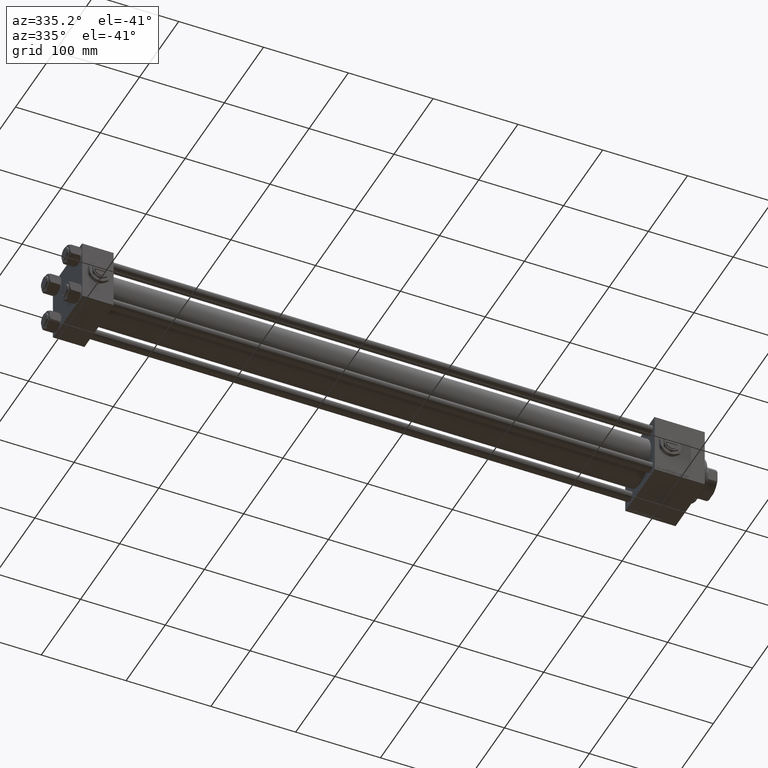
[diagram: clean part render]
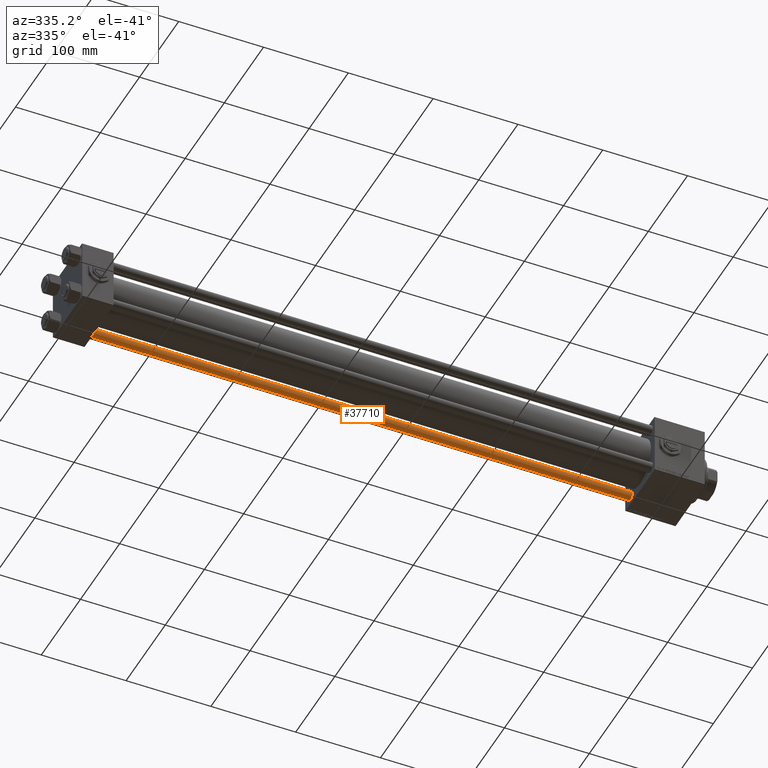
[diagram: same view with one face highlighted and labeled with its STEP entity id]
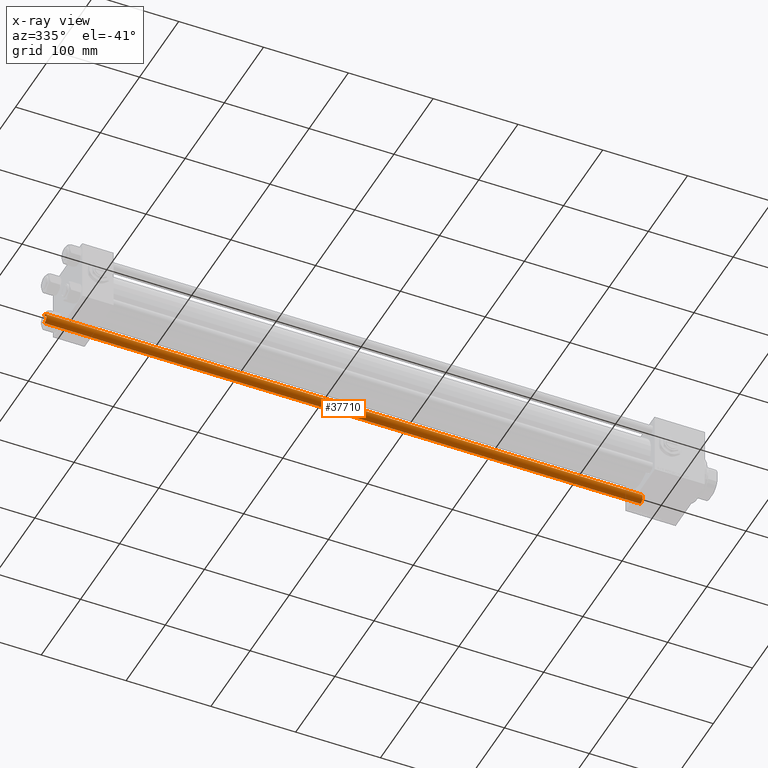
[diagram: x-ray of the same camera — body ghosted, the highlighted face saturated]
A machine part, auxiliary view. The second image highlights one B-rep face of the part: STEP entity #37710.
The next image is the same camera in x-ray: the body ghosted, the highlighted face saturated — about 0% of this face is hidden behind the body in this view.
In plain terms, the highlighted cylindrical surface (edge-blend (fillet) strip) has radius 6 mm, axis along (1, -0, 0).
Its self-contained STEP definition (entity closure, byte-faithful):
#419 = CIRCLE ( 'NONE', #21549, 6.000000000000000888 ) ;
#1515 = EDGE_CURVE ( 'NONE', #26181, #23233, #419, .T. ) ;
#1715 = DIRECTION ( 'NONE',  ( 1.000000000000000000, 0.000000000000000000, 0.000000000000000000 ) ) ;
#1857 = CARTESIAN_POINT ( 'NONE',  ( -6.000000000000000888, 0.000000000000000000, 704.0000000000000000 ) ) ;
#3064 = CARTESIAN_POINT ( 'NONE',  ( 0.000000000000000000, 0.000000000000000000, 704.0000000000000000 ) ) ;
#4867 = ORIENTED_EDGE ( 'NONE', *, *, #1515, .T. ) ;
#5751 = EDGE_CURVE ( 'NONE', #47365, #23233, #28094, .T. ) ;
#6604 = LINE ( 'NONE', #1857, #32880 ) ;
#8415 = CARTESIAN_POINT ( 'NONE',  ( -6.000000000000000888, 0.000000000000000000, 703.5000000000000000 ) ) ;
#10837 = ORIENTED_EDGE ( 'NONE', *, *, #41990, .T. ) ;
#11759 = CARTESIAN_POINT ( 'NONE',  ( 6.000000000000000888, 7.347880794884120722E-16, 703.5000000000000000 ) ) ;
#12498 = CIRCLE ( 'NONE', #42138, 6.000000000000000888 ) ;
#13815 = EDGE_CURVE ( 'NONE', #15531, #26181, #6604, .T. ) ;
#15255 = DIRECTION ( 'NONE',  ( -1.000000000000000000, 0.000000000000000000, 0.000000000000000000 ) ) ;
#15531 = VERTEX_POINT ( 'NONE', #8415 ) ;
#18596 = ORIENTED_EDGE ( 'NONE', *, *, #5751, .F. ) ;
#19215 = DIRECTION ( 'NONE',  ( -0.000000000000000000, -0.000000000000000000, -1.000000000000000000 ) ) ;
#19478 = FACE_OUTER_BOUND ( 'NONE', #48323, .T. ) ;
#21549 = AXIS2_PLACEMENT_3D ( 'NONE', #45193, #25303, #1715 ) ;
#23233 = VERTEX_POINT ( 'NONE', #47168 ) ;
#25303 = DIRECTION ( 'NONE',  ( -0.000000000000000000, -0.000000000000000000, 1.000000000000000000 ) ) ;
#26099 = CARTESIAN_POINT ( 'NONE',  ( 0.000000000000000000, 0.000000000000000000, 703.5000000000000000 ) ) ;
#26181 = VERTEX_POINT ( 'NONE', #49496 ) ;
#28094 = LINE ( 'NONE', #48768, #35106 ) ;
#28628 = DIRECTION ( 'NONE',  ( -0.000000000000000000, -0.000000000000000000, -1.000000000000000000 ) ) ;
#30082 = ORIENTED_EDGE ( 'NONE', *, *, #13815, .T. ) ;
#30331 = DIRECTION ( 'NONE',  ( 0.000000000000000000, 0.000000000000000000, -1.000000000000000000 ) ) ;
#32880 = VECTOR ( 'NONE', #33955, 1000.000000000000000 ) ;
#33955 = DIRECTION ( 'NONE',  ( -0.000000000000000000, -0.000000000000000000, -1.000000000000000000 ) ) ;
#35106 = VECTOR ( 'NONE', #28628, 1000.000000000000000 ) ;
#37710 = ADVANCED_FACE ( 'NONE', ( #19478 ), #51837, .T. ) ;
#38568 = AXIS2_PLACEMENT_3D ( 'NONE', #3064, #19215, #15255 ) ;
#41990 = EDGE_CURVE ( 'NONE', #47365, #15531, #12498, .T. ) ;
#42138 = AXIS2_PLACEMENT_3D ( 'NONE', #26099, #30331, #42273 ) ;
#42273 = DIRECTION ( 'NONE',  ( 1.000000000000000000, 0.000000000000000000, 0.000000000000000000 ) ) ;
#45193 = CARTESIAN_POINT ( 'NONE',  ( 0.000000000000000000, 0.000000000000000000, 0.4999999999998339106 ) ) ;
#47168 = CARTESIAN_POINT ( 'NONE',  ( 6.000000000000000888, 7.347880794884120722E-16, 0.4999999999998339106 ) ) ;
#47365 = VERTEX_POINT ( 'NONE', #11759 ) ;
#48323 = EDGE_LOOP ( 'NONE', ( #18596, #10837, #30082, #4867 ) ) ;
#48768 = CARTESIAN_POINT ( 'NONE',  ( 6.000000000000000888, 7.347880794884120722E-16, 704.0000000000000000 ) ) ;
#49496 = CARTESIAN_POINT ( 'NONE',  ( -6.000000000000000888, 0.000000000000000000, 0.4999999999998339106 ) ) ;
#51837 = CYLINDRICAL_SURFACE ( 'NONE', #38568, 6.000000000000000888 ) ;